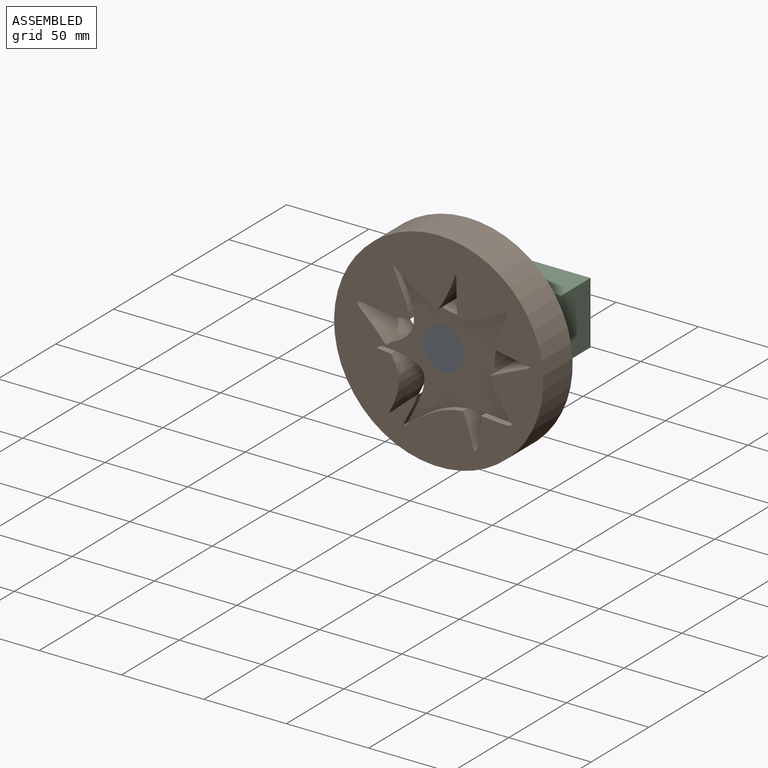
[diagram: assembled view]
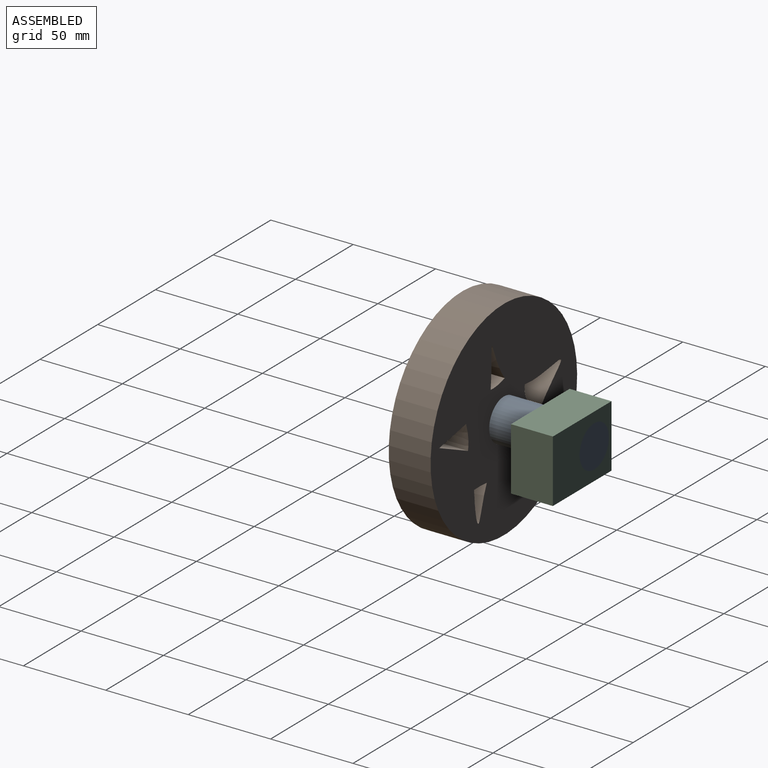
[diagram: assembled view, second angle]
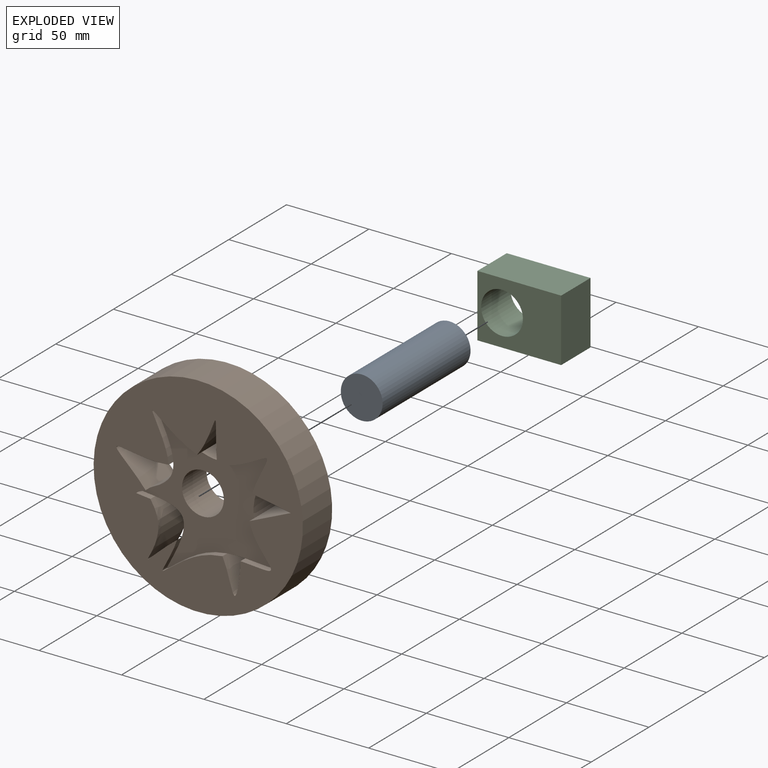
[diagram: exploded view]
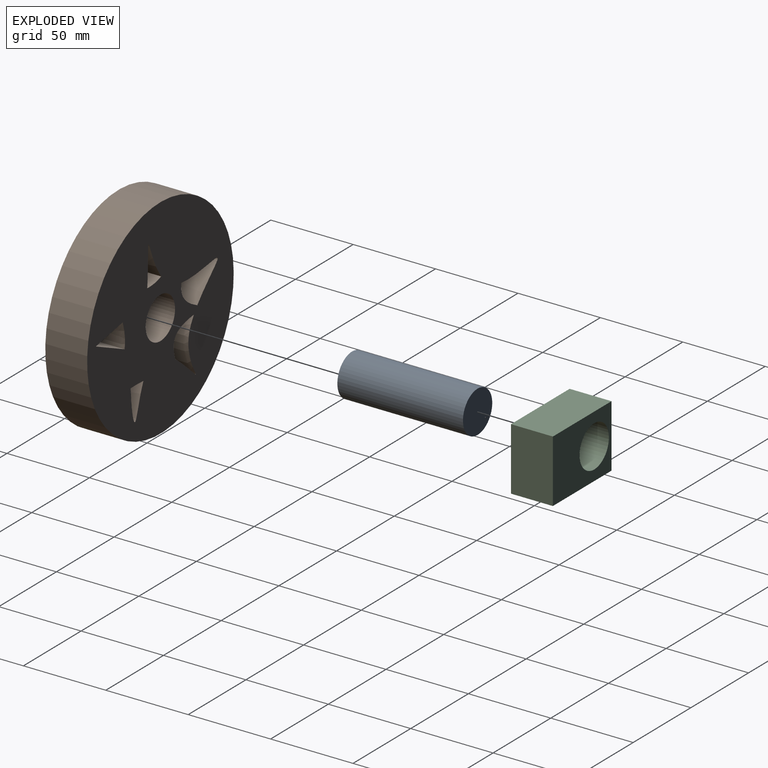
[diagram: exploded view, second angle]
ASSEMBLY  parts=3 mates=2
PART A: 3 faces, bbox 25.4x76.2x25.4 mm
  f0: cylinder r=12.7mm len=76.2mm, axis (0,1,0), area 6080.5mm2, adj f1,f2
  f1: plane 25.4x25.4mm, normal (0,-1,0), area 506.7mm2, adj f0
  f2: plane 25.4x25.4mm, normal (0,1,0), area 506.7mm2, adj f0
PART B: 21 faces, bbox 127x25.4x127 mm
  f0: plane 127x127mm, normal (0,-1,0), area 8416.5mm2, adj f2,f3,f4,f5,f6,f8,f11,f13
  f1: plane 127x127mm, normal (0,1,0), area 11064.2mm2, adj f7,f8,f10,f11,f12,f13,f14,f15
  f2: extruded ~26.99x16.46mm, area 186.5mm2, adj f0,f9,f18,f20
  f3: extruded ~31.64x19.86mm, area 227.6mm2, adj f0,f9,f15,f16
  f4: extruded ~28.58x19.97mm, area 250.5mm2, adj f0,f9,f13,f15
  f5: extruded ~6.78x5.49mm, area 61.1mm2, adj f0,f9,f11,f13
  f6: extruded ~40.25x15.23mm, area 252.1mm2, adj f0,f9,f11,f20
  f7: cylinder r=12.7mm len=25.4mm, axis (0,1,0), area 1702.5mm2, adj f1,f9
  f8: cylinder r=63.5mm len=127mm, axis (0,1,0), area 10134.1mm2, adj f0,f1
  f9: plane 98.8x97.9mm, normal (0,-1,0), area 2647.6mm2, adj f2,f3,f4,f5,f6,f7,f10,f12
  f10: extruded ~23.94x21.34mm, area 646.9mm2, adj f1,f9,f11
  f11: extruded ~28.07x25.4mm, area 1501.5mm2, adj f0,f1,f5,f6,f10
  f12: extruded ~21.34x21mm, area 519mm2, adj f1,f9,f13
  f13: extruded ~26.77x25.62mm, area 1478.4mm2, adj f0,f1,f4,f5,f12
  f14: extruded ~21.34x9.51mm, area 263.9mm2, adj f1,f9,f15
  f15: extruded ~25.4x20.94mm, area 1231.8mm2, adj f0,f1,f3,f4,f14
  f16: plane 25.4x17.91mm, normal (0.66,0,0.75), area 603.2mm2, adj f0,f1,f3,f17,f18
  f17: extruded ~21.34x12.47mm, area 334.7mm2, adj f1,f9,f16,f18
  f18: plane 27.14x25.4mm, normal (-0.11,0,-0.99), area 693.9mm2, adj f0,f1,f2,f16,f17
  f19: extruded ~21.34x9.59mm, area 234.6mm2, adj f1,f9,f20
  f20: extruded ~25.4x20.79mm, area 1065mm2, adj f0,f1,f2,f6,f19
PART C: 7 faces, bbox 50.8x25.4x38.1 mm
  f0: plane 38.1x25.4mm, normal (1,0,0), area 967.7mm2, adj f1,f3,f5,f6
  f1: plane 50.8x25.4mm, normal (0,0,1), area 1290.3mm2, adj f0,f2,f5,f6
  f2: plane 38.1x25.4mm, normal (-1,0,0), area 967.7mm2, adj f1,f3,f5,f6
  f3: plane 50.8x25.4mm, normal (0,0,-1), area 1290.3mm2, adj f0,f2,f5,f6
  f4: cylinder r=12.7mm len=25.4mm, axis (0,1,0), area 2026.8mm2, adj f5,f6
  f5: plane 50.8x38.1mm, normal (0,-1,0), area 1428.8mm2, adj f0,f1,f2,f3,f4
  f6: plane 50.8x38.1mm, normal (0,1,0), area 1428.8mm2, adj f0,f1,f2,f3,f4
PLACE A t=(-57.62,16.04,45.83)mm
PLACE B rot(axis=(0,1,0),149.5deg) t=(-57.62,-38.82,45.83)mm
PLACE C t=(-47.14,16.04,45.83)mm fixed
MATE revolute A.f0 <-> B.f7  axis (0,-1,0) through (-57.62,-60.16,45.83)mm
MATE fastened C.f4 <-> A.f0  axis (0,1,0) through (-57.62,16.04,45.83)mm
